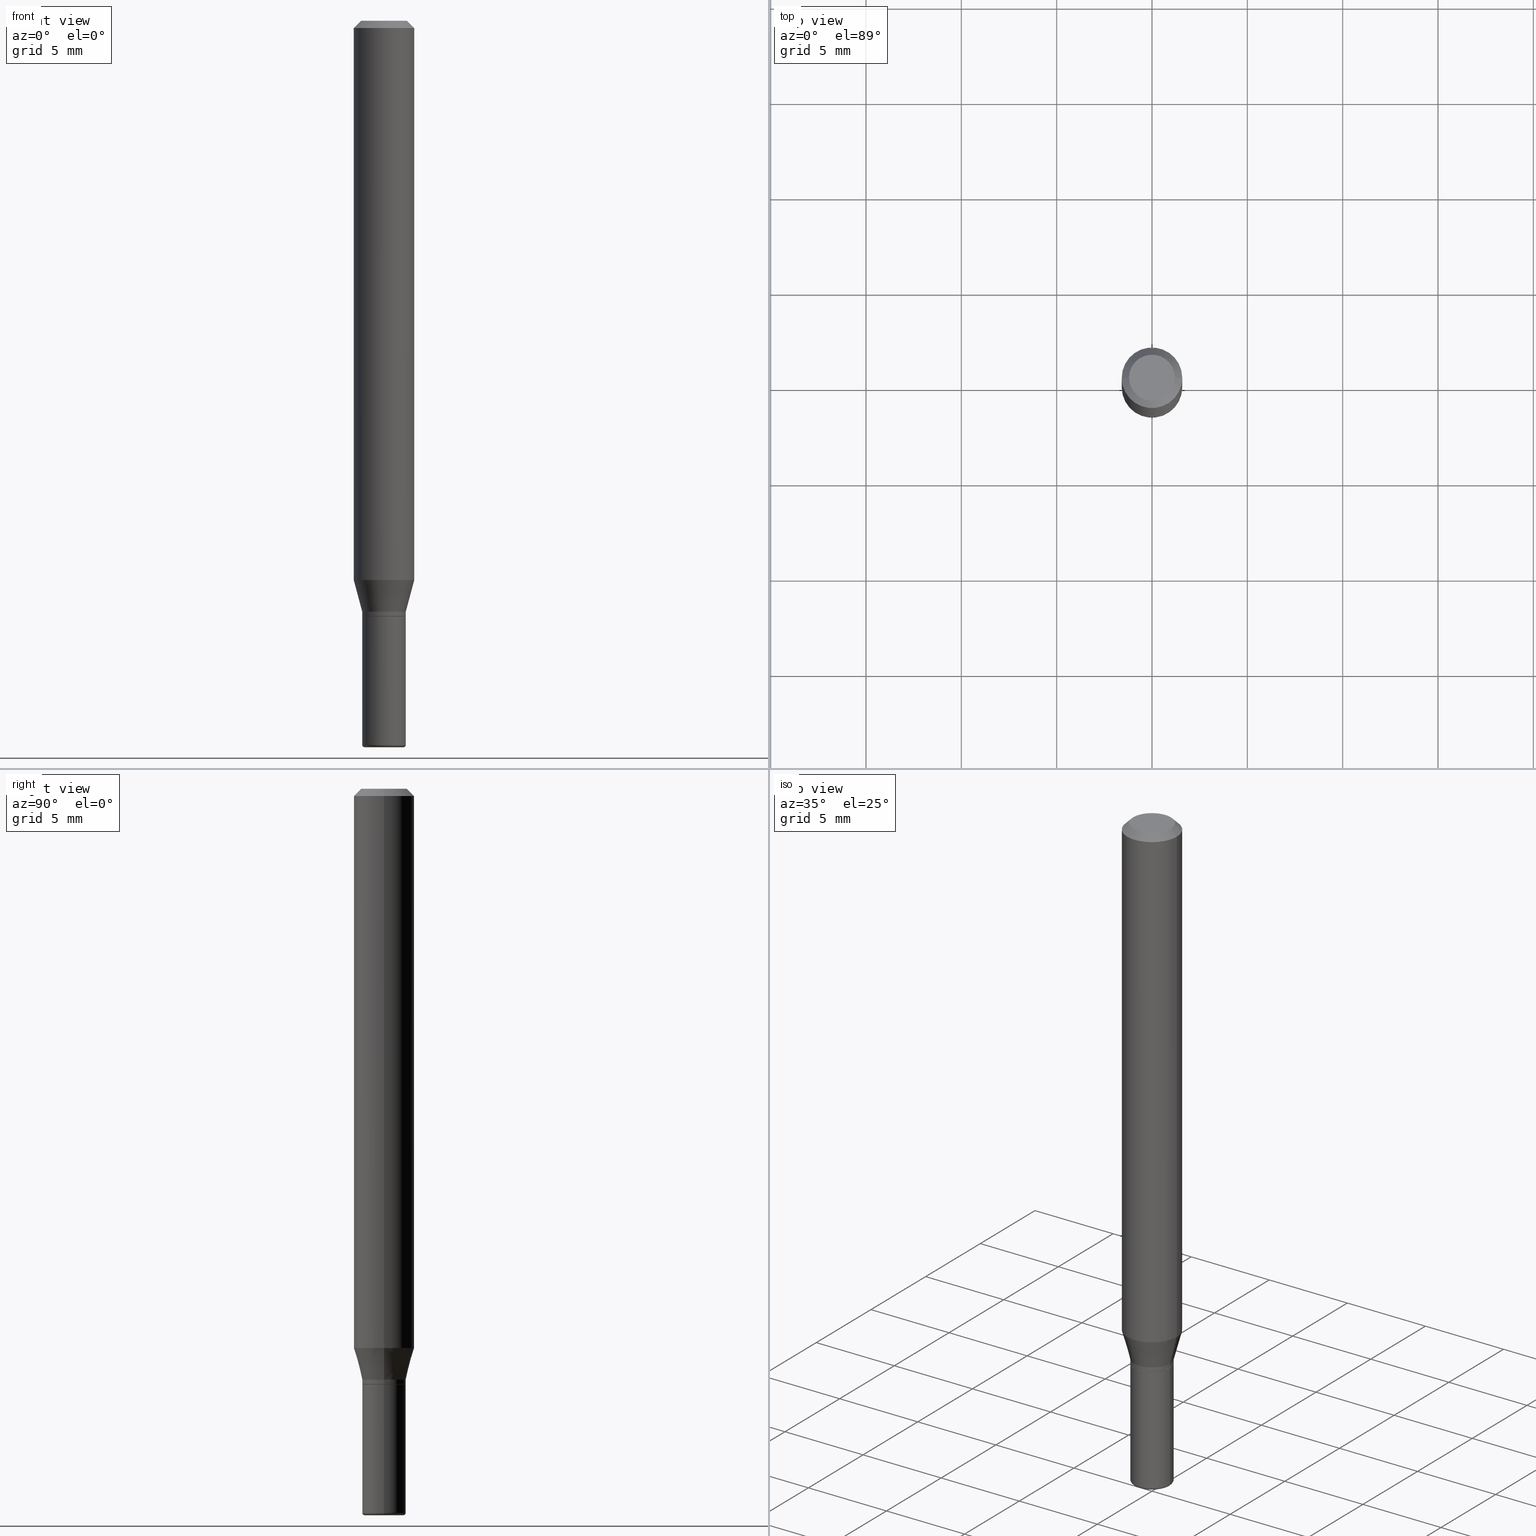
[diagram: canonical four-view strip — front | top / right | iso, engineering-drawing reading convention]
A machine part, canonical four-view strip (front | top / right | iso — engineering-drawing reading convention). The complete STEP part file that produces these views, byte-faithful:
ISO-10303-21;
HEADER;
FILE_DESCRIPTION (( 'STEP AP203' ),
    '1' );
FILE_NAME ('08717.STEP',
    '2024-02-29T20:34:12',
    ( '' ),
    ( '' ),
    'SwSTEP 2.0',
    'SolidWorks 2023',
    '' );
FILE_SCHEMA (( 'CONFIG_CONTROL_DESIGN' ));
ENDSEC;

DATA;
#1 = AXIS2_PLACEMENT_3D ( 'NONE', #77, #389, #318 ) ;
#2 = DIRECTION ( 'NONE',  ( 0.7071067811866199593, -2.468850131083015945E-15, 0.7071067811864750752 ) ) ;
#3 = ORIENTED_EDGE ( 'NONE', *, *, #471, .T. ) ;
#4 = LINE ( 'NONE', #172, #320 ) ;
#5 = CARTESIAN_POINT ( 'NONE',  ( 0.06250000000000000000, -4.364351673553916694E-16, 3.047610484872459871E-30 ) ) ;
#6 = SECURITY_CLASSIFICATION_LEVEL ( 'unclassified' ) ;
#7 = CC_DESIGN_DATE_AND_TIME_ASSIGNMENT ( #322, #293, ( #65 ) ) ;
#8 = ORIENTED_EDGE ( 'NONE', *, *, #262, .F. ) ;
#9 = APPLICATION_CONTEXT ( 'configuration controlled 3d designs of mechanical parts and assemblies' ) ;
#10 = DIRECTION ( 'NONE',  ( 1.000000000000000000, -6.982962677686261189E-15, 4.883557194083110098E-29 ) ) ;
#11 = AXIS2_PLACEMENT_3D ( 'NONE', #226, #179, #344 ) ;
#12 = AXIS2_PLACEMENT_3D ( 'NONE', #351, #67, #337 ) ;
#13 = CYLINDRICAL_SURFACE ( 'NONE', #303, 0.06250000000000000000 ) ;
#14 = APPROVAL_STATUS ( 'not_yet_approved' ) ;
#15 = CARTESIAN_POINT ( 'NONE',  ( 0.04499999999999990119, -5.533997922066385616E-15, -1.495000000000000329 ) ) ;
#16 = DIRECTION ( 'NONE',  ( -2.445468806185136597E-29, 3.491481338843145583E-15, 1.000000000000000000 ) ) ;
#17 = DIRECTION ( 'NONE',  ( -2.445468806185136597E-29, 3.491481338843145583E-15, 1.000000000000000000 ) ) ;
#18 = EDGE_CURVE ( 'NONE', #327, #83, #96, .T. ) ;
#19 = DIRECTION ( 'NONE',  ( 1.000000000000000000, -6.982962677686262766E-15, 0.000000000000000000 ) ) ;
#20 = ADVANCED_FACE ( 'NONE', ( #92 ), #13, .T. ) ;
#21 = AXIS2_PLACEMENT_3D ( 'NONE', #159, #132, #203 ) ;
#22 = VECTOR ( 'NONE', #377, 39.37007874015748143 ) ;
#23 = DIRECTION ( 'NONE',  ( -2.445468806185136597E-29, 3.491481338843145583E-15, 1.000000000000000000 ) ) ;
#24 = CARTESIAN_POINT ( 'NONE',  ( 2.823756201468229950E-29, -4.031575482759414101E-15, -1.154689110867544111 ) ) ;
#25 = DIRECTION ( 'NONE',  ( -2.445468806185136597E-29, 3.491481338843145583E-15, 1.000000000000000000 ) ) ;
#26 = CARTESIAN_POINT ( 'NONE',  ( -0.04449999999999994238, -3.975681302189714292E-15, -1.230000000000000204 ) ) ;
#27 = AXIS2_PLACEMENT_3D ( 'NONE', #374, #343, #500 ) ;
#28 = CC_DESIGN_APPROVAL ( #156, ( #240 ) ) ;
#29 = DIMENSIONAL_EXPONENTS ( 1.000000000000000000, 0.000000000000000000, 0.000000000000000000, 0.000000000000000000, 0.000000000000000000, 0.000000000000000000, 0.000000000000000000 ) ;
#30 = EDGE_CURVE ( 'NONE', #294, #327, #338, .T. ) ;
#31 = EDGE_CURVE ( 'NONE', #153, #321, #410, .T. ) ;
#32 = AXIS2_PLACEMENT_3D ( 'NONE', #248, #17, #10 ) ;
#33 = LOCAL_TIME ( 15, 34, 12.00000000000000000, #116 ) ;
#34 = ORIENTED_EDGE ( 'NONE', *, *, #108, .F. ) ;
#35 = ORIENTED_EDGE ( 'NONE', *, *, #30, .T. ) ;
#36 = ORIENTED_EDGE ( 'NONE', *, *, #86, .F. ) ;
#37 = CARTESIAN_POINT ( 'NONE',  ( 0.04449999999999994238, -4.605263885934107852E-15, -1.230000000000000204 ) ) ;
#38 = DIRECTION ( 'NONE',  ( -2.445468806185136597E-29, 3.491481338843145583E-15, 1.000000000000000000 ) ) ;
#39 = ORIENTED_EDGE ( 'NONE', *, *, #498, .F. ) ;
#40 = DIRECTION ( 'NONE',  ( -1.000000000000000000, 7.105427357601061812E-15, 0.000000000000000000 ) ) ;
#41 = CARTESIAN_POINT ( 'NONE',  ( 0.04499999999999992895, -4.573840553884517633E-15, -1.219999999999999751 ) ) ;
#42 = ADVANCED_FACE ( 'NONE', ( #256 ), #335, .T. ) ;
#43 = DIRECTION ( 'NONE',  ( 1.000000000000000000, -6.982962677686262766E-15, 0.000000000000000000 ) ) ;
#44 = CARTESIAN_POINT ( 'NONE',  ( 0.06250000000000000000, -4.468010650114805770E-15, -1.154689110867544111 ) ) ;
#45 = ORIENTED_EDGE ( 'NONE', *, *, #263, .T. ) ;
#46 = CARTESIAN_POINT ( 'NONE',  ( -0.06250000000000000000, 3.840629472727455270E-16, -0.01499999999999970281 ) ) ;
#47 = AXIS2_PLACEMENT_3D ( 'NONE', #182, #466, #59 ) ;
#48 = TOROIDAL_SURFACE ( 'NONE', #275, 0.04000000000000000083, 0.004999999999999903827 ) ;
#49 = AXIS2_PLACEMENT_3D ( 'NONE', #486, #342, #490 ) ;
#50 = DIRECTION ( 'NONE',  ( -2.445468806185136877E-29, 3.491481338843145188E-15, 1.000000000000000000 ) ) ;
#51 = VERTEX_POINT ( 'NONE', #492 ) ;
#52 = DIRECTION ( 'NONE',  ( -0.7071067811865479058, 2.468850131082261005E-15, -0.7071067811865471286 ) ) ;
#53 = DIRECTION ( 'NONE',  ( -0.7071067811866199593, 7.493145998870616062E-15, 0.7071067811864750752 ) ) ;
#54 = LINE ( 'NONE', #46, #296 ) ;
#55 = CARTESIAN_POINT ( 'NONE',  ( 3.007926631607718216E-29, -4.294522046777069173E-15, -1.230000000000000204 ) ) ;
#56 = ORIENTED_EDGE ( 'NONE', *, *, #228, .F. ) ;
#57 = CIRCLE ( 'NONE', #309, 0.06250000000000000000 ) ;
#58 = CIRCLE ( 'NONE', #409, 0.04449999999999994238 ) ;
#59 = DIRECTION ( 'NONE',  ( 1.000000000000000000, -6.982962677686261977E-15, 0.000000000000000000 ) ) ;
#60 = MECHANICAL_CONTEXT ( 'NONE', #253, 'mechanical' ) ;
#61 = DIRECTION ( 'NONE',  ( 1.000000000000000000, -6.982962677686269077E-15, 0.000000000000000000 ) ) ;
#62 = DIRECTION ( 'NONE',  ( -2.445468806185136877E-29, 3.491481338843145188E-15, 1.000000000000000000 ) ) ;
#63 = PERSON_AND_ORGANIZATION ( #469, #190 ) ;
#64 = AXIS2_PLACEMENT_3D ( 'NONE', #265, #25, #183 ) ;
#65 = SECURITY_CLASSIFICATION ( '', '', #6 ) ;
#66 = ORIENTED_EDGE ( 'NONE', *, *, #151, .T. ) ;
#67 = DIRECTION ( 'NONE',  ( -2.445468806185136597E-29, 3.491481338843145583E-15, 1.000000000000000000 ) ) ;
#68 = ADVANCED_FACE ( 'NONE', ( #399 ), #510, .T. ) ;
#69 = EDGE_CURVE ( 'NONE', #241, #51, #468, .T. ) ;
#70 = DIRECTION ( 'NONE',  ( 1.000000000000000000, -6.982962677686257244E-15, 0.000000000000000000 ) ) ;
#71 = CALENDAR_DATE ( 2024, 29, 2 ) ;
#72 = ORIENTED_EDGE ( 'NONE', *, *, #228, .T. ) ;
#73 = ORIENTED_EDGE ( 'NONE', *, *, #18, .F. ) ;
#74 = DIRECTION ( 'NONE',  ( -2.445468806185136597E-29, 3.491481338843145583E-15, 1.000000000000000000 ) ) ;
#75 = AXIS2_PLACEMENT_3D ( 'NONE', #252, #494, #449 ) ;
#76 = CIRCLE ( 'NONE', #167, 0.04499999999999994976 ) ;
#77 = CARTESIAN_POINT ( 'NONE',  ( 3.668203209277704335E-29, -5.237222008264717388E-15, -1.499999999999999778 ) ) ;
#78 = ORIENTED_EDGE ( 'NONE', *, *, #262, .T. ) ;
#79 = CYLINDRICAL_SURFACE ( 'NONE', #189, 0.04499999999999993588 ) ;
#80 = ORIENTED_EDGE ( 'NONE', *, *, #198, .T. ) ;
#81 = VERTEX_POINT ( 'NONE', #324 ) ;
#82 = DIRECTION ( 'NONE',  ( -2.445468806185136597E-29, 3.491481338843145583E-15, 1.000000000000000000 ) ) ;
#83 = VERTEX_POINT ( 'NONE', #128 ) ;
#84 = AXIS2_PLACEMENT_3D ( 'NONE', #360, #122, #246 ) ;
#85 = CC_DESIGN_APPROVAL ( #171, ( #331 ) ) ;
#86 = EDGE_CURVE ( 'NONE', #327, #81, #57, .T. ) ;
#87 = CARTESIAN_POINT ( 'NONE',  ( 0.000000000000000000, 0.000000000000000000, 0.000000000000000000 ) ) ;
#88 = DIRECTION ( 'NONE',  ( -2.445468806185136597E-29, 3.491481338843145583E-15, 1.000000000000000000 ) ) ;
#89 = FACE_OUTER_BOUND ( 'NONE', #518, .T. ) ;
#90 = CARTESIAN_POINT ( 'NONE',  ( 0.000000000000000000, 0.000000000000000000, 0.000000000000000000 ) ) ;
#91 = SHAPE_DEFINITION_REPRESENTATION ( #204, #232 ) ;
#92 = FACE_OUTER_BOUND ( 'NONE', #154, .T. ) ;
#93 = DIRECTION ( 'NONE',  ( 1.000000000000000000, -6.982962677686266711E-15, 0.000000000000000000 ) ) ;
#94 = APPROVAL_ROLE ( '' ) ;
#95 = VECTOR ( 'NONE', #380, 39.37007874015748143 ) ;
#96 = LINE ( 'NONE', #5, #188 ) ;
#97 = CC_DESIGN_PERSON_AND_ORGANIZATION_ASSIGNMENT ( #464, #269, ( #482 ) ) ;
#98 = DIRECTION ( 'NONE',  ( 1.000000000000000000, -6.982962677686261189E-15, 4.883557194083110098E-29 ) ) ;
#99 = PLANE ( 'NONE',  #311 ) ;
#100 = DIRECTION ( 'NONE',  ( -2.438088387897960049E-29, 3.491481338843145188E-15, 1.000000000000000000 ) ) ;
#101 = CIRCLE ( 'NONE', #387, 0.06250000000000000000 ) ;
#102 = AXIS2_PLACEMENT_3D ( 'NONE', #454, #442, #93 ) ;
#103 = LOCAL_TIME ( 15, 34, 12.00000000000000000, #287 ) ;
#104 = DIRECTION ( 'NONE',  ( 1.000000000000000000, -6.982962677686265922E-15, 0.000000000000000000 ) ) ;
#105 = CARTESIAN_POINT ( 'NONE',  ( -6.680649051745406845E-45, 9.538196290434862081E-31, 2.731847993664263218E-16 ) ) ;
#106 = DIRECTION ( 'NONE',  ( 1.000000000000000000, -6.982962677686267499E-15, 4.876176775795935232E-29 ) ) ;
#107 = EDGE_CURVE ( 'NONE', #321, #294, #368, .T. ) ;
#108 = EDGE_CURVE ( 'NONE', #514, #294, #135, .T. ) ;
#109 = DIRECTION ( 'NONE',  ( 2.445468806185136597E-29, -3.491481338843145583E-15, -1.000000000000000000 ) ) ;
#110 = AXIS2_PLACEMENT_3D ( 'NONE', #301, #419, #61 ) ;
#111 = DIRECTION ( 'NONE',  ( 0.000000000000000000, 0.000000000000000000, 1.000000000000000000 ) ) ;
#112 = ORIENTED_EDGE ( 'NONE', *, *, #499, .T. ) ;
#113 = APPROVAL_STATUS ( 'not_yet_approved' ) ;
#114 = VERTEX_POINT ( 'NONE', #140 ) ;
#115 = ORIENTED_EDGE ( 'NONE', *, *, #364, .T. ) ;
#116 = COORDINATED_UNIVERSAL_TIME_OFFSET ( 5, 0, .BEHIND. ) ;
#117 = ORIENTED_EDGE ( 'NONE', *, *, #107, .F. ) ;
#118 = ORIENTED_EDGE ( 'NONE', *, *, #107, .T. ) ;
#119 = CONICAL_SURFACE ( 'NONE', #479, 0.04499999999999992895, 0.2617993877991492968 ) ;
#120 = AXIS2_PLACEMENT_3D ( 'NONE', #417, #111, #146 ) ;
#121 = EDGE_LOOP ( 'NONE', ( #330, #144 ) ) ;
#122 = DIRECTION ( 'NONE',  ( -2.445468806185136597E-29, 3.491481338843145583E-15, 1.000000000000000000 ) ) ;
#123 = DIRECTION ( 'NONE',  ( -1.000000000000000000, 6.982962677686266711E-15, 0.000000000000000000 ) ) ;
#124 = VERTEX_POINT ( 'NONE', #26 ) ;
#125 = EDGE_CURVE ( 'NONE', #81, #327, #101, .T. ) ;
#126 = ADVANCED_FACE ( 'NONE', ( #302 ), #235, .T. ) ;
#127 = CARTESIAN_POINT ( 'NONE',  ( 3.007926631607718216E-29, -4.294522046777069173E-15, -1.230000000000000204 ) ) ;
#128 = CARTESIAN_POINT ( 'NONE',  ( 0.06250000000000000000, -4.888073874380378612E-16, -0.01499999999999970281 ) ) ;
#129 = AXIS2_PLACEMENT_3D ( 'NONE', #229, #411, #220 ) ;
#130 = COORDINATED_UNIVERSAL_TIME_OFFSET ( 5, 0, .BEHIND. ) ;
#131 = DIRECTION ( 'NONE',  ( -2.445468806185136597E-29, 3.491481338843145583E-15, 1.000000000000000000 ) ) ;
#132 = DIRECTION ( 'NONE',  ( -2.445468806185136597E-29, 3.491481338843145583E-15, 1.000000000000000000 ) ) ;
#133 = PERSON_AND_ORGANIZATION ( #469, #190 ) ;
#134 = CARTESIAN_POINT ( 'NONE',  ( 0.000000000000000000, 0.000000000000000000, 0.000000000000000000 ) ) ;
#135 = LINE ( 'NONE', #455, #376 ) ;
#136 = PLANE ( 'NONE',  #27 ) ;
#137 = CARTESIAN_POINT ( 'NONE',  ( 3.007926631607718216E-29, -4.294522046777069173E-15, -1.230000000000000204 ) ) ;
#138 = APPROVAL_STATUS ( 'not_yet_approved' ) ;
#139 = CIRCLE ( 'NONE', #12, 0.04499999999999999833 ) ;
#140 = CARTESIAN_POINT ( 'NONE',  ( -0.06250000000000000000, -1.597884641570967382E-15, -0.01499999999999970281 ) ) ;
#141 =( NAMED_UNIT ( * ) SI_UNIT ( $, .STERADIAN. ) SOLID_ANGLE_UNIT ( ) );
#142 = CARTESIAN_POINT ( 'NONE',  ( 3.007926631607718216E-29, -4.294522046777069173E-15, -1.230000000000000204 ) ) ;
#143 = EDGE_CURVE ( 'NONE', #393, #124, #210, .T. ) ;
#144 = ORIENTED_EDGE ( 'NONE', *, *, #446, .F. ) ;
#145 = LINE ( 'NONE', #267, #95 ) ;
#146 = DIRECTION ( 'NONE',  ( 1.000000000000000000, 0.000000000000000000, 0.000000000000000000 ) ) ;
#147 = MANIFOLD_SOLID_BREP ( 'Body-Move/Copy2[1]', #495 ) ;
#148 = DIRECTION ( 'NONE',  ( 1.000000000000000000, -6.982962677686265922E-15, 4.876176775795935793E-29 ) ) ;
#149 = DIRECTION ( 'NONE',  ( -2.445468806185136597E-29, 3.491481338843145583E-15, 1.000000000000000000 ) ) ;
#150 = DATE_AND_TIME ( #285, #178 ) ;
#151 = EDGE_CURVE ( 'NONE', #390, #365, #461, .T. ) ;
#152 = CIRCLE ( 'NONE', #244, 0.004999999999999903827 ) ;
#153 = VERTEX_POINT ( 'NONE', #412 ) ;
#154 = EDGE_LOOP ( 'NONE', ( #277, #45, #424, #73 ) ) ;
#155 = EDGE_LOOP ( 'NONE', ( #371, #166, #473, #117 ) ) ;
#156 = APPROVAL ( #138, 'UNSPECIFIED' ) ;
#157 = CARTESIAN_POINT ( 'NONE',  ( 0.04750000000000000749, -4.035134999187568762E-16, 2.731847993664288856E-16 ) ) ;
#158 = EDGE_CURVE ( 'NONE', #365, #390, #177, .T. ) ;
#159 = CARTESIAN_POINT ( 'NONE',  ( 3.668203209277704335E-29, -5.237222008264717388E-15, -1.499999999999999778 ) ) ;
#160 = EDGE_CURVE ( 'NONE', #321, #81, #462, .T. ) ;
#161 = PERSON_AND_ORGANIZATION ( #469, #190 ) ;
#162 = CARTESIAN_POINT ( 'NONE',  ( -0.04499999999999990119, -4.437399093081741973E-15, -1.495000000000000329 ) ) ;
#163 = ORIENTED_EDGE ( 'NONE', *, *, #295, .F. ) ;
#164 = APPLICATION_PROTOCOL_DEFINITION ( 'international standard', 'config_control_design', 1994, #253 ) ;
#165 = PERSON_AND_ORGANIZATION ( #469, #190 ) ;
#166 = ORIENTED_EDGE ( 'NONE', *, *, #383, .T. ) ;
#167 = AXIS2_PLACEMENT_3D ( 'NONE', #218, #456, #215 ) ;
#168 = CARTESIAN_POINT ( 'NONE',  ( 0.000000000000000000, 0.000000000000000000, 0.000000000000000000 ) ) ;
#169 = DIRECTION ( 'NONE',  ( -2.445468806185136877E-29, 3.491481338843145188E-15, 1.000000000000000000 ) ) ;
#170 = EDGE_CURVE ( 'NONE', #365, #418, #145, .T. ) ;
#171 = APPROVAL ( #113, 'UNSPECIFIED' ) ;
#172 = CARTESIAN_POINT ( 'NONE',  ( 0.04449999999999994238, -4.605263885934107852E-15, -1.230000000000000204 ) ) ;
#173 = ORIENTED_EDGE ( 'NONE', *, *, #471, .F. ) ;
#174 = CARTESIAN_POINT ( 'NONE',  ( 3.668203209277632395E-31, -5.237222008264614861E-17, -0.01499999999999970281 ) ) ;
#175 = CARTESIAN_POINT ( 'NONE',  ( 3.655975865246779683E-29, -5.219764601570503930E-15, -1.495000000000000329 ) ) ;
#176 = AXIS2_PLACEMENT_3D ( 'NONE', #467, #74, #70 ) ;
#177 = CIRCLE ( 'NONE', #395, 0.04499999999999990119 ) ;
#178 = LOCAL_TIME ( 15, 34, 12.00000000000000000, #354 ) ;
#179 = DIRECTION ( 'NONE',  ( 2.445468806185136597E-29, -3.491481338843145583E-15, -1.000000000000000000 ) ) ;
#180 = ADVANCED_FACE ( 'NONE', ( #497 ), #355, .T. ) ;
#181 = ORIENTED_EDGE ( 'NONE', *, *, #18, .T. ) ;
#182 = CARTESIAN_POINT ( 'NONE',  ( 3.655975865246779683E-29, -5.219764601570503930E-15, -1.495000000000000329 ) ) ;
#183 = DIRECTION ( 'NONE',  ( 1.000000000000000000, -6.982962677686266711E-15, 4.852736867747365086E-29 ) ) ;
#184 = VECTOR ( 'NONE', #316, 39.37007874015748143 ) ;
#185 = DIRECTION ( 'NONE',  ( -2.438088387897960049E-29, 3.491481338843145188E-15, 1.000000000000000000 ) ) ;
#186 = ORIENTED_EDGE ( 'NONE', *, *, #396, .F. ) ;
#187 = ORIENTED_EDGE ( 'NONE', *, *, #498, .T. ) ;
#188 = VECTOR ( 'NONE', #489, 39.37007874015748143 ) ;
#189 = AXIS2_PLACEMENT_3D ( 'NONE', #168, #82, #437 ) ;
#190 = ORGANIZATION ( 'UNSPECIFIED', 'UNSPECIFIED', '' ) ;
#191 = EDGE_LOOP ( 'NONE', ( #516, #186 ) ) ;
#192 = CC_DESIGN_DATE_AND_TIME_ASSIGNMENT ( #273, #314, ( #240 ) ) ;
#193 = EDGE_LOOP ( 'NONE', ( #8, #472, #434, #3 ) ) ;
#194 = EDGE_LOOP ( 'NONE', ( #278, #386 ) ) ;
#195 = EDGE_LOOP ( 'NONE', ( #504, #72, #39, #385 ) ) ;
#196 = EDGE_CURVE ( 'NONE', #517, #418, #201, .T. ) ;
#197 = DIRECTION ( 'NONE',  ( -2.445468806185136597E-29, 3.491481338843145583E-15, 1.000000000000000000 ) ) ;
#198 = EDGE_CURVE ( 'NONE', #394, #369, #431, .T. ) ;
#199 = CLOSED_SHELL ( 'NONE', ( #308, #180, #297, #20, #352, #328, #512, #126, #221, #219, #68, #413 ) ) ;
#200 = ORIENTED_EDGE ( 'NONE', *, *, #160, .F. ) ;
#201 = CIRCLE ( 'NONE', #110, 0.04499999999999999833 ) ;
#202 = ORIENTED_EDGE ( 'NONE', *, *, #353, .F. ) ;
#203 = DIRECTION ( 'NONE',  ( 1.000000000000000000, -6.982962677686259611E-15, 0.000000000000000000 ) ) ;
#204 = PRODUCT_DEFINITION_SHAPE ( 'NONE', 'NONE',  #240 ) ;
#205 = DIRECTION ( 'NONE',  ( 1.000000000000000000, -6.982962677686266711E-15, 4.876176775795934672E-29 ) ) ;
#206 = CARTESIAN_POINT ( 'NONE',  ( 2.983471943545866110E-29, -4.259607233388636735E-15, -1.219999999999999751 ) ) ;
#207 = DIRECTION ( 'NONE',  ( -2.445468806185136597E-29, 3.491481338843145583E-15, 1.000000000000000000 ) ) ;
#208 = ORIENTED_EDGE ( 'NONE', *, *, #125, .T. ) ;
#209 = ADVANCED_FACE ( 'NONE', ( #260 ), #99, .F. ) ;
#210 = CIRCLE ( 'NONE', #505, 0.04449999999999994238 ) ;
#211 = AXIS2_PLACEMENT_3D ( 'NONE', #55, #100, #148 ) ;
#212 = LOCAL_TIME ( 15, 34, 12.00000000000000000, #130 ) ;
#213 = FACE_OUTER_BOUND ( 'NONE', #315, .T. ) ;
#214 = ORIENTED_EDGE ( 'NONE', *, *, #30, .F. ) ;
#215 = DIRECTION ( 'NONE',  ( 1.000000000000000000, -6.982962677686276177E-15, 0.000000000000000000 ) ) ;
#216 = DIRECTION ( 'NONE',  ( -2.445468806185136597E-29, 3.491481338843145583E-15, 1.000000000000000000 ) ) ;
#217 = DIRECTION ( 'NONE',  ( 1.000000000000000000, -6.982962677686266711E-15, 4.852736867747365086E-29 ) ) ;
#218 = CARTESIAN_POINT ( 'NONE',  ( 3.006703897204625975E-29, -4.292776306107648458E-15, -1.229500000000000259 ) ) ;
#219 = ADVANCED_FACE ( 'NONE', ( #459 ), #506, .F. ) ;
#220 = DIRECTION ( 'NONE',  ( -1.000000000000000000, 6.982962677686265922E-15, -4.876176775795935793E-29 ) ) ;
#221 = ADVANCED_FACE ( 'NONE', ( #465 ), #375, .F. ) ;
#222 = VECTOR ( 'NONE', #441, 39.37007874015748854 ) ;
#223 = AXIS2_PLACEMENT_3D ( 'NONE', #134, #131, #205 ) ;
#224 = ORIENTED_EDGE ( 'NONE', *, *, #458, .F. ) ;
#225 = APPROVAL ( #14, 'UNSPECIFIED' ) ;
#226 = CARTESIAN_POINT ( 'NONE',  ( 3.668203209277632395E-31, -5.237222008264614861E-17, -0.01499999999999970281 ) ) ;
#227 = DIRECTION ( 'NONE',  ( -2.445468806185136597E-29, 3.491481338843145583E-15, 1.000000000000000000 ) ) ;
#228 = EDGE_CURVE ( 'NONE', #124, #153, #379, .T. ) ;
#229 = CARTESIAN_POINT ( 'NONE',  ( 3.316907271900976589E-16, 0.04750000000000000749, -2.925296391183627249E-17 ) ) ;
#230 = CIRCLE ( 'NONE', #84, 0.04499999999999994976 ) ;
#231 = ORIENTED_EDGE ( 'NONE', *, *, #446, .T. ) ;
#232 = ADVANCED_BREP_SHAPE_REPRESENTATION ( '08717', ( #147, #312, #120 ), #432 ) ;
#233 = EDGE_CURVE ( 'NONE', #369, #394, #438, .T. ) ;
#234 = ORIENTED_EDGE ( 'NONE', *, *, #69, .T. ) ;
#235 = CONICAL_SURFACE ( 'NONE', #11, 0.06250000000000000000, 0.7853981633974488341 ) ;
#236 = VECTOR ( 'NONE', #50, 39.37007874015748143 ) ;
#237 = CARTESIAN_POINT ( 'NONE',  ( 0.04499999999999992895, -4.573840553884517633E-15, -1.219999999999999751 ) ) ;
#238 = ORIENTED_EDGE ( 'NONE', *, *, #435, .F. ) ;
#239 = CARTESIAN_POINT ( 'NONE',  ( -0.04000000000000000083, -4.935547507266463603E-15, -1.495000000000000107 ) ) ;
#240 = PRODUCT_DEFINITION ( 'UNKNOWN', '', #331, #400 ) ;
#241 = VERTEX_POINT ( 'NONE', #381 ) ;
#242 = CARTESIAN_POINT ( 'NONE',  ( 2.983471943545866110E-29, -4.259607233388636735E-15, -1.219999999999999751 ) ) ;
#243 = AXIS2_PLACEMENT_3D ( 'NONE', #137, #38, #247 ) ;
#244 = AXIS2_PLACEMENT_3D ( 'NONE', #326, #407, #401 ) ;
#245 = ORIENTED_EDGE ( 'NONE', *, *, #196, .F. ) ;
#246 = DIRECTION ( 'NONE',  ( 1.000000000000000000, -6.982962677686276177E-15, 0.000000000000000000 ) ) ;
#247 = DIRECTION ( 'NONE',  ( 1.000000000000000000, -6.982962677686265922E-15, 0.000000000000000000 ) ) ;
#248 = CARTESIAN_POINT ( 'NONE',  ( 3.655975865246779122E-29, -5.219764601570503141E-15, -1.495000000000000107 ) ) ;
#249 = PERSON_AND_ORGANIZATION_ROLE ( 'classification_officer' ) ;
#250 = CC_DESIGN_PERSON_AND_ORGANIZATION_ASSIGNMENT ( #161, #362, ( #331 ) ) ;
#251 = CARTESIAN_POINT ( 'NONE',  ( 2.983471943545866110E-29, -4.259607233388636735E-15, -1.219999999999999751 ) ) ;
#252 = CARTESIAN_POINT ( 'NONE',  ( 0.000000000000000000, 0.000000000000000000, 0.000000000000000000 ) ) ;
#253 = APPLICATION_CONTEXT ( 'configuration controlled 3d designs of mechanical parts and assemblies' ) ;
#254 = FACE_OUTER_BOUND ( 'NONE', #426, .T. ) ;
#255 = FACE_OUTER_BOUND ( 'NONE', #429, .T. ) ;
#256 = FACE_OUTER_BOUND ( 'NONE', #433, .T. ) ;
#257 = AXIS2_PLACEMENT_3D ( 'NONE', #87, #216, #106 ) ;
#258 =( NAMED_UNIT ( * ) PLANE_ANGLE_UNIT ( ) SI_UNIT ( $, .RADIAN. ) );
#259 = DATE_AND_TIME ( #447, #103 ) ;
#260 = FACE_OUTER_BOUND ( 'NONE', #121, .T. ) ;
#261 =( CONVERSION_BASED_UNIT ( 'INCH', #286 ) LENGTH_UNIT ( ) NAMED_UNIT ( #29 ) );
#262 = EDGE_CURVE ( 'NONE', #394, #83, #264, .T. ) ;
#263 = EDGE_CURVE ( 'NONE', #81, #114, #350, .T. ) ;
#264 = LINE ( 'NONE', #508, #22 ) ;
#265 = CARTESIAN_POINT ( 'NONE',  ( -6.680649051745406845E-45, 9.538196290434862081E-31, 2.731847993664263218E-16 ) ) ;
#266 = TOROIDAL_SURFACE ( 'NONE', #32, 0.04000000000000000083, 0.004999999999999903827 ) ;
#267 = CARTESIAN_POINT ( 'NONE',  ( 0.04499999999999994976, -3.142333204958816371E-16, 2.194279549108168164E-30 ) ) ;
#268 = CARTESIAN_POINT ( 'NONE',  ( 3.582686580359765478E-29, -5.359686688179452536E-15, -1.499999999999999778 ) ) ;
#269 = PERSON_AND_ORGANIZATION_ROLE ( 'design_owner' ) ;
#270 = ORIENTED_EDGE ( 'NONE', *, *, #125, .F. ) ;
#271 = APPROVAL_ROLE ( '' ) ;
#272 = ORIENTED_EDGE ( 'NONE', *, *, #160, .T. ) ;
#273 = DATE_AND_TIME ( #71, #33 ) ;
#274 = ORIENTED_EDGE ( 'NONE', *, *, #295, .T. ) ;
#275 = AXIS2_PLACEMENT_3D ( 'NONE', #373, #336, #98 ) ;
#276 = APPROVAL_PERSON_ORGANIZATION ( #325, #225, #94 ) ;
#277 = ORIENTED_EDGE ( 'NONE', *, *, #86, .T. ) ;
#278 = ORIENTED_EDGE ( 'NONE', *, *, #435, .T. ) ;
#279 = DIRECTION ( 'NONE',  ( 1.000000000000000000, -6.982962677686265922E-15, 0.000000000000000000 ) ) ;
#280 = EDGE_LOOP ( 'NONE', ( #234, #476, #425, #202 ) ) ;
#281 = UNCERTAINTY_MEASURE_WITH_UNIT (LENGTH_MEASURE( 1.000000000000000082E-05 ), #261, 'distance_accuracy_value', 'NONE');
#282 = CIRCLE ( 'NONE', #176, 0.04499999999999992895 ) ;
#283 = CARTESIAN_POINT ( 'NONE',  ( 2.823756201468229950E-29, -4.031575482759414101E-15, -1.154689110867544111 ) ) ;
#284 = CC_DESIGN_APPROVAL ( #225, ( #65 ) ) ;
#285 = CALENDAR_DATE ( 2024, 29, 2 ) ;
#286 = LENGTH_MEASURE_WITH_UNIT ( LENGTH_MEASURE( 0.02539999999999999897 ), #450 );
#287 = COORDINATED_UNIVERSAL_TIME_OFFSET ( 5, 0, .BEHIND. ) ;
#288 = CARTESIAN_POINT ( 'NONE',  ( -0.04499999999999994976, 3.197442310920447267E-16, -2.213520790614704757E-30 ) ) ;
#289 = DIRECTION ( 'NONE',  ( -2.445468806185136597E-29, 3.491481338843145583E-15, 1.000000000000000000 ) ) ;
#290 = CALENDAR_DATE ( 2024, 29, 2 ) ;
#291 = CARTESIAN_POINT ( 'NONE',  ( -0.04499999999999992895, -3.763674637602971820E-15, -1.219999999999999751 ) ) ;
#292 = DIRECTION ( 'NONE',  ( 1.000000000000000000, -6.982962677686266711E-15, 4.876176775795935793E-29 ) ) ;
#293 = DATE_TIME_ROLE ( 'classification_date' ) ;
#294 = VERTEX_POINT ( 'NONE', #237 ) ;
#295 = EDGE_CURVE ( 'NONE', #294, #321, #282, .T. ) ;
#296 = VECTOR ( 'NONE', #52, 39.37007874015748143 ) ;
#297 = ADVANCED_FACE ( 'NONE', ( #509 ), #382, .T. ) ;
#298 = APPROVAL_ROLE ( '' ) ;
#299 = FACE_OUTER_BOUND ( 'NONE', #194, .T. ) ;
#300 = DIRECTION ( 'NONE',  ( 1.000000000000000000, -6.982962677686265922E-15, 0.000000000000000000 ) ) ;
#301 = CARTESIAN_POINT ( 'NONE',  ( 3.007926631607718216E-29, -4.294522046777069173E-15, -1.230000000000000204 ) ) ;
#302 = FACE_OUTER_BOUND ( 'NONE', #193, .T. ) ;
#303 = AXIS2_PLACEMENT_3D ( 'NONE', #90, #16, #292 ) ;
#304 = CARTESIAN_POINT ( 'NONE',  ( -0.04449999999999994238, -3.978330529363825493E-15, -1.230000000000000204 ) ) ;
#305 = DIRECTION ( 'NONE',  ( -2.445468806185136597E-29, 3.491481338843145583E-15, 1.000000000000000000 ) ) ;
#306 = PERSON_AND_ORGANIZATION_ROLE ( 'creator' ) ;
#307 = PERSON_AND_ORGANIZATION ( #469, #190 ) ;
#308 = ADVANCED_FACE ( 'NONE', ( #255 ), #79, .T. ) ;
#309 = AXIS2_PLACEMENT_3D ( 'NONE', #283, #88, #43 ) ;
#310 = ADVANCED_FACE ( 'NONE', ( #89 ), #363, .T. ) ;
#311 = AXIS2_PLACEMENT_3D ( 'NONE', #268, #185, #347 ) ;
#312 = MANIFOLD_SOLID_BREP ( 'Body-Move/Copy2[2]', #199 ) ;
#313 = PRODUCT_RELATED_PRODUCT_CATEGORY ( 'detail', '', ( #482 ) ) ;
#314 = DATE_TIME_ROLE ( 'creation_date' ) ;
#315 = EDGE_LOOP ( 'NONE', ( #200, #118, #35, #270 ) ) ;
#316 = DIRECTION ( 'NONE',  ( -2.445468806185136877E-29, 3.491481338843145188E-15, 1.000000000000000000 ) ) ;
#317 = ORIENTED_EDGE ( 'NONE', *, *, #353, .T. ) ;
#318 = DIRECTION ( 'NONE',  ( 1.000000000000000000, -6.982962677686259611E-15, 0.000000000000000000 ) ) ;
#319 = COORDINATED_UNIVERSAL_TIME_OFFSET ( 5, 0, .BEHIND. ) ;
#320 = VECTOR ( 'NONE', #2, 39.37007874015748143 ) ;
#321 = VERTEX_POINT ( 'NONE', #291 ) ;
#322 = DATE_AND_TIME ( #290, #212 ) ;
#323 = FACE_OUTER_BOUND ( 'NONE', #155, .T. ) ;
#324 = CARTESIAN_POINT ( 'NONE',  ( -0.06250000000000000000, -3.587486272909351485E-15, -1.154689110867544111 ) ) ;
#325 = PERSON_AND_ORGANIZATION ( #469, #190 ) ;
#326 = CARTESIAN_POINT ( 'NONE',  ( 0.04000000000000000083, -5.499083108677953967E-15, -1.495000000000000107 ) ) ;
#327 = VERTEX_POINT ( 'NONE', #44 ) ;
#328 = ADVANCED_FACE ( 'NONE', ( #213 ), #507, .T. ) ;
#329 = CIRCLE ( 'NONE', #102, 0.06250000000000000000 ) ;
#330 = ORIENTED_EDGE ( 'NONE', *, *, #69, .F. ) ;
#331 = PRODUCT_DEFINITION_FORMATION_WITH_SPECIFIED_SOURCE ( 'ANY', '', #482, .NOT_KNOWN. ) ;
#332 = DIRECTION ( 'NONE',  ( 1.000000000000000000, -6.982962677686266711E-15, 0.000000000000000000 ) ) ;
#333 = APPROVAL_DATE_TIME ( #259, #225 ) ;
#334 = DIRECTION ( 'NONE',  ( 1.000000000000000000, -6.982962677686257244E-15, 0.000000000000000000 ) ) ;
#335 = CYLINDRICAL_SURFACE ( 'NONE', #75, 0.04499999999999994976 ) ;
#336 = DIRECTION ( 'NONE',  ( -2.445468806185136597E-29, 3.491481338843145583E-15, 1.000000000000000000 ) ) ;
#337 = DIRECTION ( 'NONE',  ( 1.000000000000000000, -6.982962677686269077E-15, 0.000000000000000000 ) ) ;
#338 = LINE ( 'NONE', #41, #222 ) ;
#339 = DIRECTION ( 'NONE',  ( -2.445468806185136597E-29, 3.491481338843145583E-15, 1.000000000000000000 ) ) ;
#340 = DIRECTION ( 'NONE',  ( 1.000000000000000000, -6.982962677686261977E-15, 0.000000000000000000 ) ) ;
#341 = AXIS2_PLACEMENT_3D ( 'NONE', #142, #420, #104 ) ;
#342 = DIRECTION ( 'NONE',  ( -2.445468806185136597E-29, 3.491481338843145583E-15, 1.000000000000000000 ) ) ;
#343 = DIRECTION ( 'NONE',  ( 2.438088387897960049E-29, -3.491481338843145188E-15, -1.000000000000000000 ) ) ;
#344 = DIRECTION ( 'NONE',  ( -1.000000000000000000, 6.982962677686266711E-15, 0.000000000000000000 ) ) ;
#345 = ORIENTED_EDGE ( 'NONE', *, *, #364, .F. ) ;
#346 = CARTESIAN_POINT ( 'NONE',  ( -0.04499999999999992895, -3.939863002296592156E-15, -1.219999999999999751 ) ) ;
#347 = DIRECTION ( 'NONE',  ( 1.000000000000000000, -6.982962677686265922E-15, 4.876176775795935793E-29 ) ) ;
#348 = VECTOR ( 'NONE', #169, 39.37007874015748143 ) ;
#349 = CIRCLE ( 'NONE', #463, 0.06250000000000000000 ) ;
#350 = LINE ( 'NONE', #414, #184 ) ;
#351 = CARTESIAN_POINT ( 'NONE',  ( 3.007926631607718216E-29, -4.294522046777069173E-15, -1.230000000000000204 ) ) ;
#352 = ADVANCED_FACE ( 'NONE', ( #448 ), #119, .T. ) ;
#353 = EDGE_CURVE ( 'NONE', #241, #365, #152, .T. ) ;
#354 = COORDINATED_UNIVERSAL_TIME_OFFSET ( 5, 0, .BEHIND. ) ;
#355 = CONICAL_SURFACE ( 'NONE', #341, 0.04449999999999994238, 0.7853981633975507526 ) ;
#356 = ORIENTED_EDGE ( 'NONE', *, *, #384, .F. ) ;
#357 = CARTESIAN_POINT ( 'NONE',  ( 3.668203209277632395E-31, -5.237222008264614861E-17, -0.01499999999999970281 ) ) ;
#358 = ORIENTED_EDGE ( 'NONE', *, *, #170, .F. ) ;
#359 = AXIS2_PLACEMENT_3D ( 'NONE', #105, #23, #217 ) ;
#360 = CARTESIAN_POINT ( 'NONE',  ( 3.006703897204625975E-29, -4.292776306107648458E-15, -1.229500000000000259 ) ) ;
#361 = EDGE_LOOP ( 'NONE', ( #56, #470, #367, #513 ) ) ;
#362 = PERSON_AND_ORGANIZATION_ROLE ( 'creator' ) ;
#363 = CYLINDRICAL_SURFACE ( 'NONE', #223, 0.04499999999999994976 ) ;
#364 = EDGE_CURVE ( 'NONE', #390, #517, #398, .T. ) ;
#365 = VERTEX_POINT ( 'NONE', #15 ) ;
#366 = EDGE_CURVE ( 'NONE', #393, #514, #4, .T. ) ;
#367 = ORIENTED_EDGE ( 'NONE', *, *, #366, .T. ) ;
#368 = CIRCLE ( 'NONE', #487, 0.04499999999999992895 ) ;
#369 = VERTEX_POINT ( 'NONE', #480 ) ;
#370 = CALENDAR_DATE ( 2024, 29, 2 ) ;
#371 = ORIENTED_EDGE ( 'NONE', *, *, #31, .F. ) ;
#372 = CC_DESIGN_PERSON_AND_ORGANIZATION_ASSIGNMENT ( #165, #249, ( #65 ) ) ;
#373 = CARTESIAN_POINT ( 'NONE',  ( 3.655975865246779122E-29, -5.219764601570503141E-15, -1.495000000000000107 ) ) ;
#374 = CARTESIAN_POINT ( 'NONE',  ( 3.142333204959120083E-16, 0.04499999999999570316, -1.230000000000000204 ) ) ;
#375 = PLANE ( 'NONE',  #129 ) ;
#376 = VECTOR ( 'NONE', #62, 39.37007874015748143 ) ;
#377 = DIRECTION ( 'NONE',  ( 0.7071067811865479058, -7.319954787623257623E-15, -0.7071067811865471286 ) ) ;
#378 = CIRCLE ( 'NONE', #511, 0.004999999999999903827 ) ;
#379 = LINE ( 'NONE', #304, #397 ) ;
#380 = DIRECTION ( 'NONE',  ( -2.445468806185136877E-29, 3.491481338843145188E-15, 1.000000000000000000 ) ) ;
#381 = CARTESIAN_POINT ( 'NONE',  ( 0.04000000000000000083, -5.516540515372168214E-15, -1.499999999999999778 ) ) ;
#382 = CONICAL_SURFACE ( 'NONE', #415, 0.06250000000000000000, 0.7853981633974488341 ) ;
#383 = EDGE_CURVE ( 'NONE', #153, #514, #230, .T. ) ;
#384 = EDGE_CURVE ( 'NONE', #51, #390, #378, .T. ) ;
#385 = ORIENTED_EDGE ( 'NONE', *, *, #366, .F. ) ;
#386 = ORIENTED_EDGE ( 'NONE', *, *, #196, .T. ) ;
#387 = AXIS2_PLACEMENT_3D ( 'NONE', #24, #149, #19 ) ;
#388 = APPROVAL_PERSON_ORGANIZATION ( #63, #156, #298 ) ;
#389 = DIRECTION ( 'NONE',  ( -2.445468806185136597E-29, 3.491481338843145583E-15, 1.000000000000000000 ) ) ;
#390 = VERTEX_POINT ( 'NONE', #162 ) ;
#391 = FACE_OUTER_BOUND ( 'NONE', #280, .T. ) ;
#392 = DIRECTION ( 'NONE',  ( 7.105427357601001859E-15, 1.000000000000000000, -3.491481338843145583E-15 ) ) ;
#393 = VERTEX_POINT ( 'NONE', #37 ) ;
#394 = VERTEX_POINT ( 'NONE', #157 ) ;
#395 = AXIS2_PLACEMENT_3D ( 'NONE', #175, #227, #340 ) ;
#396 = EDGE_CURVE ( 'NONE', #124, #393, #58, .T. ) ;
#397 = VECTOR ( 'NONE', #53, 39.37007874015748143 ) ;
#398 = LINE ( 'NONE', #288, #236 ) ;
#399 = FACE_OUTER_BOUND ( 'NONE', #361, .T. ) ;
#400 = DESIGN_CONTEXT ( 'detailed design', #9, 'design' ) ;
#401 = DIRECTION ( 'NONE',  ( 1.000000000000000000, -6.982962677686273021E-15, 0.000000000000000000 ) ) ;
#402 = CARTESIAN_POINT ( 'NONE',  ( -0.04499999999999993588, 3.197442310920446281E-16, -2.213520790614704407E-30 ) ) ;
#403 = CARTESIAN_POINT ( 'NONE',  ( 0.04499999999999994976, -4.607009626603530145E-15, -1.229500000000000259 ) ) ;
#404 = EDGE_LOOP ( 'NONE', ( #485, #80 ) ) ;
#405 = CYLINDRICAL_SURFACE ( 'NONE', #49, 0.06250000000000000000 ) ;
#406 = DATE_AND_TIME ( #370, #416 ) ;
#407 = DIRECTION ( 'NONE',  ( -6.982962677686266711E-15, -1.000000000000000000, 3.491481338843145583E-15 ) ) ;
#408 = CC_DESIGN_PERSON_AND_ORGANIZATION_ASSIGNMENT ( #133, #443, ( #331 ) ) ;
#409 = AXIS2_PLACEMENT_3D ( 'NONE', #127, #440, #279 ) ;
#410 = LINE ( 'NONE', #402, #348 ) ;
#411 = DIRECTION ( 'NONE',  ( 2.438088387897960049E-29, -3.491481338843145188E-15, -1.000000000000000000 ) ) ;
#412 = CARTESIAN_POINT ( 'NONE',  ( -0.04499999999999994976, -3.973032075015603880E-15, -1.229500000000000259 ) ) ;
#413 = ADVANCED_FACE ( 'NONE', ( #323 ), #483, .T. ) ;
#414 = CARTESIAN_POINT ( 'NONE',  ( -0.06250000000000000000, 4.440892098500626162E-16, -3.074334431409316114E-30 ) ) ;
#415 = AXIS2_PLACEMENT_3D ( 'NONE', #357, #109, #123 ) ;
#416 = LOCAL_TIME ( 15, 34, 12.00000000000000000, #319 ) ;
#417 = CARTESIAN_POINT ( 'NONE',  ( 0.000000000000000000, 0.000000000000000000, 0.000000000000000000 ) ) ;
#418 = VERTEX_POINT ( 'NONE', #422 ) ;
#419 = DIRECTION ( 'NONE',  ( -2.445468806185136597E-29, 3.491481338843145583E-15, 1.000000000000000000 ) ) ;
#420 = DIRECTION ( 'NONE',  ( -2.445468806185136597E-29, 3.491481338843145583E-15, 1.000000000000000000 ) ) ;
#421 = APPLICATION_PROTOCOL_DEFINITION ( 'international standard', 'config_control_design', 1994, #9 ) ;
#422 = CARTESIAN_POINT ( 'NONE',  ( 0.04499999999999999833, -4.608755367272951648E-15, -1.230000000000000204 ) ) ;
#423 = CIRCLE ( 'NONE', #1, 0.04000000000000000083 ) ;
#424 = ORIENTED_EDGE ( 'NONE', *, *, #499, .F. ) ;
#425 = ORIENTED_EDGE ( 'NONE', *, *, #158, .F. ) ;
#426 = EDGE_LOOP ( 'NONE', ( #356, #231, #317, #430 ) ) ;
#427 = ORIENTED_EDGE ( 'NONE', *, *, #198, .F. ) ;
#428 = PERSON_AND_ORGANIZATION ( #469, #190 ) ;
#429 = EDGE_LOOP ( 'NONE', ( #187, #478, #163, #34 ) ) ;
#430 = ORIENTED_EDGE ( 'NONE', *, *, #151, .F. ) ;
#431 = CIRCLE ( 'NONE', #64, 0.04750000000000000749 ) ;
#432 =( GEOMETRIC_REPRESENTATION_CONTEXT ( 3 ) GLOBAL_UNCERTAINTY_ASSIGNED_CONTEXT ( ( #281 ) ) GLOBAL_UNIT_ASSIGNED_CONTEXT ( ( #261, #258, #141 ) ) REPRESENTATION_CONTEXT ( 'NONE', 'WORKASPACE' ) );
#433 = EDGE_LOOP ( 'NONE', ( #345, #66, #515, #245 ) ) ;
#434 = ORIENTED_EDGE ( 'NONE', *, *, #458, .T. ) ;
#435 = EDGE_CURVE ( 'NONE', #418, #517, #139, .T. ) ;
#436 = ADVANCED_FACE ( 'NONE', ( #299 ), #136, .F. ) ;
#437 = DIRECTION ( 'NONE',  ( 1.000000000000000000, -6.982962677686267499E-15, 4.876176775795935232E-29 ) ) ;
#438 = CIRCLE ( 'NONE', #359, 0.04750000000000000749 ) ;
#439 = APPROVAL_PERSON_ORGANIZATION ( #428, #171, #271 ) ;
#440 = DIRECTION ( 'NONE',  ( -2.445468806185136597E-29, 3.491481338843145583E-15, 1.000000000000000000 ) ) ;
#441 = DIRECTION ( 'NONE',  ( 0.2588190451025205729, 1.565188264969627490E-15, 0.9659258262890682012 ) ) ;
#442 = DIRECTION ( 'NONE',  ( -2.445468806185136597E-29, 3.491481338843145583E-15, 1.000000000000000000 ) ) ;
#443 = PERSON_AND_ORGANIZATION_ROLE ( 'design_supplier' ) ;
#444 = DIRECTION ( 'NONE',  ( 1.000000000000000000, -6.982962677686257244E-15, 0.000000000000000000 ) ) ;
#445 = CARTESIAN_POINT ( 'NONE',  ( -0.04499999999999999833, -4.437399093081741973E-15, -1.230000000000000204 ) ) ;
#446 = EDGE_CURVE ( 'NONE', #51, #241, #423, .T. ) ;
#447 = CALENDAR_DATE ( 2024, 29, 2 ) ;
#448 = FACE_OUTER_BOUND ( 'NONE', #477, .T. ) ;
#449 = DIRECTION ( 'NONE',  ( 1.000000000000000000, -6.982962677686266711E-15, 4.876176775795934672E-29 ) ) ;
#450 =( LENGTH_UNIT ( ) NAMED_UNIT ( * ) SI_UNIT ( $, .METRE. ) );
#451 = APPROVAL_DATE_TIME ( #406, #171 ) ;
#452 = VECTOR ( 'NONE', #503, 39.37007874015748854 ) ;
#453 = ORIENTED_EDGE ( 'NONE', *, *, #158, .T. ) ;
#454 = CARTESIAN_POINT ( 'NONE',  ( 3.668203209277632395E-31, -5.237222008264614861E-17, -0.01499999999999970281 ) ) ;
#455 = CARTESIAN_POINT ( 'NONE',  ( 0.04499999999999993588, -3.142333204958815878E-16, 2.194279549108167814E-30 ) ) ;
#456 = DIRECTION ( 'NONE',  ( -2.445468806185136597E-29, 3.491481338843145583E-15, 1.000000000000000000 ) ) ;
#457 = ADVANCED_FACE ( 'NONE', ( #391 ), #266, .T. ) ;
#458 = EDGE_CURVE ( 'NONE', #369, #114, #54, .T. ) ;
#459 = FACE_OUTER_BOUND ( 'NONE', #191, .T. ) ;
#460 = ORIENTED_EDGE ( 'NONE', *, *, #263, .F. ) ;
#461 = CIRCLE ( 'NONE', #47, 0.04499999999999990119 ) ;
#462 = LINE ( 'NONE', #346, #452 ) ;
#463 = AXIS2_PLACEMENT_3D ( 'NONE', #174, #339, #332 ) ;
#464 = PERSON_AND_ORGANIZATION ( #469, #190 ) ;
#465 = FACE_OUTER_BOUND ( 'NONE', #404, .T. ) ;
#466 = DIRECTION ( 'NONE',  ( -2.445468806185136597E-29, 3.491481338843145583E-15, 1.000000000000000000 ) ) ;
#467 = CARTESIAN_POINT ( 'NONE',  ( 2.983471943545866110E-29, -4.259607233388636735E-15, -1.219999999999999751 ) ) ;
#468 = CIRCLE ( 'NONE', #21, 0.04000000000000000083 ) ;
#469 = PERSON ( 'UNSPECIFIED', 'UNSPECIFIED', 'UNSPECIFIED', ('UNSPECIFIED'), ('UNSPECIFIED'), ('UNSPECIFIED') ) ;
#470 = ORIENTED_EDGE ( 'NONE', *, *, #396, .T. ) ;
#471 = EDGE_CURVE ( 'NONE', #114, #83, #329, .T. ) ;
#472 = ORIENTED_EDGE ( 'NONE', *, *, #233, .F. ) ;
#473 = ORIENTED_EDGE ( 'NONE', *, *, #108, .T. ) ;
#474 = ADVANCED_FACE ( 'NONE', ( #254 ), #48, .T. ) ;
#475 = APPROVAL_DATE_TIME ( #150, #156 ) ;
#476 = ORIENTED_EDGE ( 'NONE', *, *, #384, .T. ) ;
#477 = EDGE_LOOP ( 'NONE', ( #274, #272, #36, #214 ) ) ;
#478 = ORIENTED_EDGE ( 'NONE', *, *, #31, .T. ) ;
#479 = AXIS2_PLACEMENT_3D ( 'NONE', #251, #207, #334 ) ;
#480 = CARTESIAN_POINT ( 'NONE',  ( -0.04750000000000000749, 3.578768372314221353E-16, 2.731847993664239060E-16 ) ) ;
#481 = EDGE_LOOP ( 'NONE', ( #460, #208, #181, #173 ) ) ;
#482 = PRODUCT ( '08717', '08717', '', ( #60 ) ) ;
#483 = CYLINDRICAL_SURFACE ( 'NONE', #257, 0.04499999999999993588 ) ;
#484 = EDGE_LOOP ( 'NONE', ( #427, #78, #112, #224 ) ) ;
#485 = ORIENTED_EDGE ( 'NONE', *, *, #233, .T. ) ;
#486 = CARTESIAN_POINT ( 'NONE',  ( 0.000000000000000000, 0.000000000000000000, 0.000000000000000000 ) ) ;
#487 = AXIS2_PLACEMENT_3D ( 'NONE', #206, #289, #444 ) ;
#488 = CC_DESIGN_SECURITY_CLASSIFICATION ( #65, ( #331 ) ) ;
#489 = DIRECTION ( 'NONE',  ( -2.445468806185136877E-29, 3.491481338843145188E-15, 1.000000000000000000 ) ) ;
#490 = DIRECTION ( 'NONE',  ( 1.000000000000000000, -6.982962677686266711E-15, 4.876176775795935793E-29 ) ) ;
#491 = DIRECTION ( 'NONE',  ( 1.000000000000000000, -6.982962677686257244E-15, 0.000000000000000000 ) ) ;
#492 = CARTESIAN_POINT ( 'NONE',  ( -0.04000000000000000083, -4.926512642219568995E-15, -1.499999999999999778 ) ) ;
#493 = FACE_OUTER_BOUND ( 'NONE', #481, .T. ) ;
#494 = DIRECTION ( 'NONE',  ( -2.445468806185136597E-29, 3.491481338843145583E-15, 1.000000000000000000 ) ) ;
#495 = CLOSED_SHELL ( 'NONE', ( #457, #310, #436, #42, #474, #209 ) ) ;
#496 = AXIS2_PLACEMENT_3D ( 'NONE', #242, #197, #491 ) ;
#497 = FACE_OUTER_BOUND ( 'NONE', #195, .T. ) ;
#498 = EDGE_CURVE ( 'NONE', #514, #153, #76, .T. ) ;
#499 = EDGE_CURVE ( 'NONE', #83, #114, #349, .T. ) ;
#500 = DIRECTION ( 'NONE',  ( -1.000000000000000000, 6.982962677686265922E-15, -4.876176775795935793E-29 ) ) ;
#501 = CARTESIAN_POINT ( 'NONE',  ( 3.007926631607718216E-29, -4.294522046777069173E-15, -1.230000000000000204 ) ) ;
#502 = CC_DESIGN_PERSON_AND_ORGANIZATION_ASSIGNMENT ( #307, #306, ( #240 ) ) ;
#503 = DIRECTION ( 'NONE',  ( -0.2588190451025205729, 5.211531920934544731E-15, 0.9659258262890682012 ) ) ;
#504 = ORIENTED_EDGE ( 'NONE', *, *, #143, .T. ) ;
#505 = AXIS2_PLACEMENT_3D ( 'NONE', #501, #305, #300 ) ;
#506 = PLANE ( 'NONE',  #211 ) ;
#507 = CONICAL_SURFACE ( 'NONE', #496, 0.04499999999999992895, 0.2617993877991492968 ) ;
#508 = CARTESIAN_POINT ( 'NONE',  ( 0.06250000000000000000, -4.811533449433669144E-16, -0.01499999999999970281 ) ) ;
#509 = FACE_OUTER_BOUND ( 'NONE', #484, .T. ) ;
#510 = CONICAL_SURFACE ( 'NONE', #243, 0.04449999999999994238, 0.7853981633975507526 ) ;
#511 = AXIS2_PLACEMENT_3D ( 'NONE', #239, #392, #40 ) ;
#512 = ADVANCED_FACE ( 'NONE', ( #493 ), #405, .T. ) ;
#513 = ORIENTED_EDGE ( 'NONE', *, *, #383, .F. ) ;
#514 = VERTEX_POINT ( 'NONE', #403 ) ;
#515 = ORIENTED_EDGE ( 'NONE', *, *, #170, .T. ) ;
#516 = ORIENTED_EDGE ( 'NONE', *, *, #143, .F. ) ;
#517 = VERTEX_POINT ( 'NONE', #445 ) ;
#518 = EDGE_LOOP ( 'NONE', ( #453, #115, #238, #358 ) ) ;
ENDSEC;
END-ISO-10303-21;
